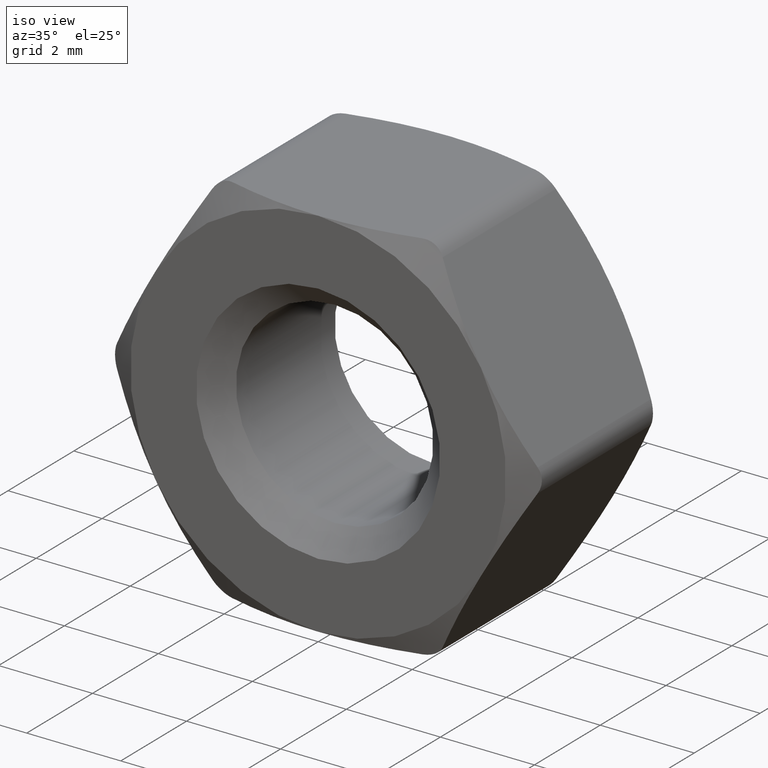
[diagram: clean part render]
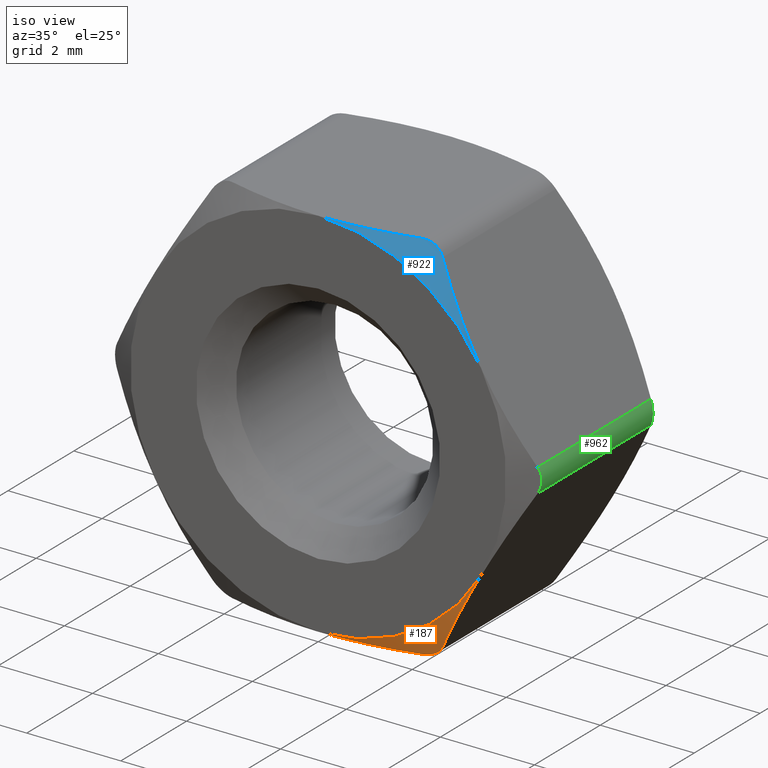
[diagram: same view with three faces highlighted in distinct colors, each labeled with its STEP entity id]
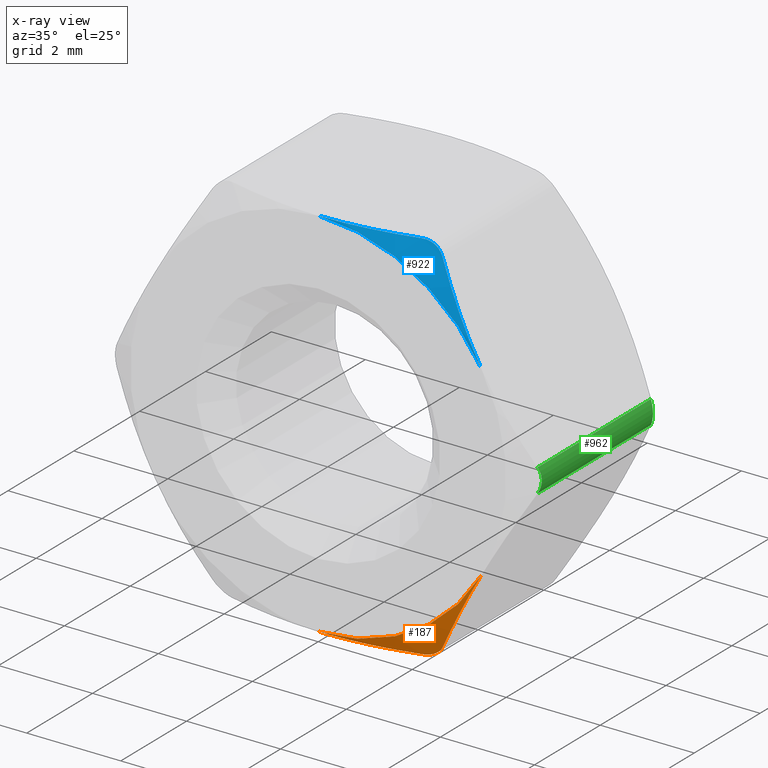
[diagram: x-ray of the same camera — body ghosted, the three highlighted faces saturated]
A machine part, iso view with three faces highlighted in distinct colors.
The next image is the same camera in x-ray (body ghosted, the three faces saturated) — at least one of them is partly hidden behind the body in this view.
Their STEP definitions:

[orange] entity #187 — the highlighted conical surface has half-angle 60 deg.
#3 = CARTESIAN_POINT ( 'NONE',  ( 3.464101615137754800, -1.999999999999999600, -2.000000000000000000 ) ) ;
#98 = B_SPLINE_CURVE_WITH_KNOTS ( 'NONE', 3,
 ( #1752, #1726, #739, #1925, #114, #1757 ),
 .UNSPECIFIED., .F., .F.,
 ( 4, 2, 4 ),
 ( 3.634908046050479300E-018, 0.0002633584510814149500, 0.0005267169021628269600 ),
 .UNSPECIFIED. ) ;
#101 = CARTESIAN_POINT ( 'NONE',  ( 2.020725942163680100, -1.722038627381837100, -4.000000000000001800 ) ) ;
#114 = CARTESIAN_POINT ( 'NONE',  ( 2.410673497673494500, -1.699616087001901500, -3.824591021569729400 ) ) ;
#133 = VERTEX_POINT ( 'NONE', #941 ) ;
#187 = ADVANCED_FACE ( 'NONE', ( #1926 ), #1085, .T. ) ;
#232 = VERTEX_POINT ( 'NONE', #1425 ) ;
#266 = EDGE_CURVE ( 'NONE', #133, #835, #663, .T. ) ;
#326 = ORIENTED_EDGE ( 'NONE', *, *, #266, .F. ) ;
#330 = EDGE_CURVE ( 'NONE', #835, #1880, #441, .T. ) ;
#441 = CIRCLE ( 'NONE', #1036, 3.999999999999997300 ) ;
#519 = CARTESIAN_POINT ( 'NONE',  ( 2.618897511130724900, -1.808031168384834700, -3.463936450905895600 ) ) ;
#528 = CARTESIAN_POINT ( 'NONE',  ( 3.293077073406431000, -2.000000000000004000, -2.296223195619825100 ) ) ;
#663 = B_SPLINE_CURVE_WITH_KNOTS ( 'NONE', 3,
 ( #101, #1262, #1414, #1576, #1588, #994 ),
 .UNSPECIFIED., .F., .F.,
 ( 4, 2, 4 ),
 ( 0.001992220213491122600, 0.003008387476956228400, 0.004024554740421334100 ),
 .UNSPECIFIED. ) ;
#739 = CARTESIAN_POINT ( 'NONE',  ( 2.194171834017785400, -1.687431351220890500, -3.977124165804344400 ) ) ;
#786 = EDGE_LOOP ( 'NONE', ( #326, #1383, #1766, #1743 ) ) ;
#835 = VERTEX_POINT ( 'NONE', #1184 ) ;
#932 = AXIS2_PLACEMENT_3D ( 'NONE', #1393, #1545, #1702 ) ;
#941 = CARTESIAN_POINT ( 'NONE',  ( 2.020725942163680100, -1.722038627381837100, -4.000000000000001800 ) ) ;
#994 = CARTESIAN_POINT ( 'NONE',  ( -3.386450907888039500E-016, -1.999999999999999100, -4.000000000000000000 ) ) ;
#1036 = AXIS2_PLACEMENT_3D ( 'NONE', #1431, #1569, #1721 ) ;
#1085 = CONICAL_SURFACE ( 'NONE', #932, 4.000000000000000000, 1.047197551196603800 ) ;
#1105 = CARTESIAN_POINT ( 'NONE',  ( 2.785389696007726900, -1.877925064878679600, -3.175563527635779400 ) ) ;
#1140 = B_SPLINE_CURVE_WITH_KNOTS ( 'NONE', 3,
 ( #1412, #528, #1691, #1105, #519, #1384 ),
 .UNSPECIFIED., .F., .F.,
 ( 4, 2, 4 ),
 ( 0.002336974151641553000, 0.003352693107047613700, 0.004368412062453674500 ),
 .UNSPECIFIED. ) ;
#1184 = CARTESIAN_POINT ( 'NONE',  ( -3.386450907888039500E-016, -1.999999999999999100, -4.000000000000000000 ) ) ;
#1262 = CARTESIAN_POINT ( 'NONE',  ( 1.692910658353532500, -1.807379698478195400, -4.000000000000001800 ) ) ;
#1383 = ORIENTED_EDGE ( 'NONE', *, *, #1656, .T. ) ;
#1384 = CARTESIAN_POINT ( 'NONE',  ( 2.453738644055903700, -1.722038627381836700, -3.750000000000001300 ) ) ;
#1389 = EDGE_CURVE ( 'NONE', #1880, #232, #1140, .T. ) ;
#1393 = CARTESIAN_POINT ( 'NONE',  ( -3.386450907888040900E-016, -1.999999999999999100, 0.0000000000000000000 ) ) ;
#1412 = CARTESIAN_POINT ( 'NONE',  ( 3.464101615137754800, -1.999999999999999600, -2.000000000000000000 ) ) ;
#1414 = CARTESIAN_POINT ( 'NONE',  ( 1.360912241211178500, -1.877328334183478800, -4.000000000000002700 ) ) ;
#1425 = CARTESIAN_POINT ( 'NONE',  ( 2.453738644055903700, -1.722038627381836700, -3.750000000000001300 ) ) ;
#1431 = CARTESIAN_POINT ( 'NONE',  ( -3.386450907888040900E-016, -2.000000000000000000, 1.173101005959984200E-015 ) ) ;
#1545 = DIRECTION ( 'NONE',  ( 1.693225453944021200E-016, 1.000000000000000000, 0.0000000000000000000 ) ) ;
#1569 = DIRECTION ( 'NONE',  ( -0.0000000000000000000, -1.000000000000000000, -0.0000000000000000000 ) ) ;
#1576 = CARTESIAN_POINT ( 'NONE',  ( 0.6851679467075209000, -1.973999151147253700, -4.000000000000000900 ) ) ;
#1588 = CARTESIAN_POINT ( 'NONE',  ( 0.3403483252378727800, -1.999999999999997800, -4.000000000000001800 ) ) ;
#1656 = EDGE_CURVE ( 'NONE', #133, #232, #98, .T. ) ;
#1691 = CARTESIAN_POINT ( 'NONE',  ( 3.121991427988896300, -1.974036377689816700, -2.592552225928713900 ) ) ;
#1702 = DIRECTION ( 'NONE',  ( 1.000000000000000000, -2.168404344971008900E-016, 0.0000000000000000000 ) ) ;
#1721 = DIRECTION ( 'NONE',  ( 0.0000000000000000000, 0.0000000000000000000, 1.000000000000000000 ) ) ;
#1726 = CARTESIAN_POINT ( 'NONE',  ( 2.106829993848384800, -1.699622918415795200, -4.000000000000002700 ) ) ;
#1743 = ORIENTED_EDGE ( 'NONE', *, *, #330, .F. ) ;
#1752 = CARTESIAN_POINT ( 'NONE',  ( 2.020725942163680100, -1.722038627381837100, -4.000000000000001800 ) ) ;
#1757 = CARTESIAN_POINT ( 'NONE',  ( 2.453738644055903700, -1.722038627381836700, -3.750000000000001300 ) ) ;
#1766 = ORIENTED_EDGE ( 'NONE', *, *, #1389, .F. ) ;
#1880 = VERTEX_POINT ( 'NONE', #3 ) ;
#1925 = CARTESIAN_POINT ( 'NONE',  ( 2.346538960722227800, -1.687354054465799700, -3.889328683676562800 ) ) ;
#1926 = FACE_OUTER_BOUND ( 'NONE', #786, .T. ) ;

[blue] entity #922 — the highlighted conical surface has half-angle 60 deg.
#60 = VERTEX_POINT ( 'NONE', #1675 ) ;
#160 = ORIENTED_EDGE ( 'NONE', *, *, #277, .F. ) ;
#231 = AXIS2_PLACEMENT_3D ( 'NONE', #676, #402, #681 ) ;
#257 = VERTEX_POINT ( 'NONE', #1891 ) ;
#275 = CARTESIAN_POINT ( 'NONE',  ( 2.410686618213948100, -1.699622918414649000, 3.824568296127053300 ) ) ;
#277 = EDGE_CURVE ( 'NONE', #257, #1117, #299, .T. ) ;
#296 = CARTESIAN_POINT ( 'NONE',  ( 2.194987963368462600, -1.687354054466038400, 3.976826692794178900 ) ) ;
#299 = CIRCLE ( 'NONE', #231, 4.000000000000000000 ) ;
#306 = CARTESIAN_POINT ( 'NONE',  ( -3.386450907888040900E-016, -1.999999999999999100, 0.0000000000000000000 ) ) ;
#402 = DIRECTION ( 'NONE',  ( -1.693225453944021200E-016, -1.000000000000000000, -0.0000000000000000000 ) ) ;
#415 = B_SPLINE_CURVE_WITH_KNOTS ( 'NONE', 3,
 ( #447, #275, #1462, #296, #1934, #1309 ),
 .UNSPECIFIED., .F., .F.,
 ( 4, 2, 4 ),
 ( 5.010733338089553500E-015, 0.0002633584510839040600, 0.0005267169021627980200 ),
 .UNSPECIFIED. ) ;
#434 = CARTESIAN_POINT ( 'NONE',  ( 0.3403483252378756700, -1.999999999999998700, 4.000000000000000000 ) ) ;
#447 = CARTESIAN_POINT ( 'NONE',  ( 2.453738644053336000, -1.722038627380491300, 3.750000000004466600 ) ) ;
#493 = CARTESIAN_POINT ( 'NONE',  ( 2.784799980754705000, -1.894410877657313400, 3.176584944416027200 ) ) ;
#567 = CARTESIAN_POINT ( 'NONE',  ( 1.692910658353543400, -1.807379698478194500, 4.000000000000000000 ) ) ;
#587 = CARTESIAN_POINT ( 'NONE',  ( 1.360912241211187800, -1.877328334183477700, 4.000000000000000000 ) ) ;
#605 = DIRECTION ( 'NONE',  ( 1.000000000000000000, -2.168404344971008900E-016, 0.0000000000000000000 ) ) ;
#665 = EDGE_LOOP ( 'NONE', ( #1598, #1932, #1362, #160 ) ) ;
#676 = CARTESIAN_POINT ( 'NONE',  ( -3.386450907888040900E-016, -1.999999999999999100, 0.0000000000000000000 ) ) ;
#681 = DIRECTION ( 'NONE',  ( 1.000000000000000000, -2.168404344971008900E-016, 0.0000000000000000000 ) ) ;
#804 = CONICAL_SURFACE ( 'NONE', #892, 4.000000000000000000, 1.047197551196603800 ) ;
#815 = VERTEX_POINT ( 'NONE', #1189 ) ;
#892 = AXIS2_PLACEMENT_3D ( 'NONE', #306, #1789, #605 ) ;
#922 = ADVANCED_FACE ( 'NONE', ( #1574 ), #804, .T. ) ;
#997 = EDGE_CURVE ( 'NONE', #815, #257, #1714, .T. ) ;
#1068 = CARTESIAN_POINT ( 'NONE',  ( 3.464101615137754400, -1.999999999999999600, 2.000000000000000400 ) ) ;
#1117 = VERTEX_POINT ( 'NONE', #1671 ) ;
#1182 = CARTESIAN_POINT ( 'NONE',  ( 0.6851679467075262300, -1.973999151147255000, 4.000000000000000000 ) ) ;
#1189 = CARTESIAN_POINT ( 'NONE',  ( 2.453738644053336000, -1.722038627380491300, 3.750000000004466600 ) ) ;
#1309 = CARTESIAN_POINT ( 'NONE',  ( 2.020725942163693400, -1.722038627381834900, 4.000000000000000000 ) ) ;
#1317 = CARTESIAN_POINT ( 'NONE',  ( -3.386450907888039500E-016, -1.999999999999999100, 4.000000000000000000 ) ) ;
#1362 = ORIENTED_EDGE ( 'NONE', *, *, #1669, .F. ) ;
#1447 = CARTESIAN_POINT ( 'NONE',  ( 2.020725942163693400, -1.722038627381834900, 4.000000000000000000 ) ) ;
#1462 = CARTESIAN_POINT ( 'NONE',  ( 2.347204644579842500, -1.687431351220643800, 3.888770631432049800 ) ) ;
#1574 = FACE_OUTER_BOUND ( 'NONE', #665, .T. ) ;
#1598 = ORIENTED_EDGE ( 'NONE', *, *, #997, .F. ) ;
#1669 = EDGE_CURVE ( 'NONE', #1117, #60, #1687, .T. ) ;
#1671 = CARTESIAN_POINT ( 'NONE',  ( -3.386450907888039500E-016, -1.999999999999999100, 4.000000000000000000 ) ) ;
#1675 = CARTESIAN_POINT ( 'NONE',  ( 2.020725942163693400, -1.722038627381834900, 4.000000000000000000 ) ) ;
#1684 = CARTESIAN_POINT ( 'NONE',  ( 3.120658469656899700, -1.999999999999999600, 2.594860977484118700 ) ) ;
#1687 = B_SPLINE_CURVE_WITH_KNOTS ( 'NONE', 3,
 ( #1317, #434, #1182, #587, #567, #1447 ),
 .UNSPECIFIED., .F., .F.,
 ( 4, 2, 4 ),
 ( 0.006456566858647354100, 0.007475338649305440800, 0.008494110439963526600 ),
 .UNSPECIFIED. ) ;
#1714 = B_SPLINE_CURVE_WITH_KNOTS ( 'NONE', 3,
 ( #1814, #493, #1684, #1068 ),
 .UNSPECIFIED., .F., .F.,
 ( 4, 4 ),
 ( 0.0002972568722511855300, 0.002336974151641543800 ),
 .UNSPECIFIED. ) ;
#1760 = EDGE_CURVE ( 'NONE', #815, #60, #415, .T. ) ;
#1789 = DIRECTION ( 'NONE',  ( 1.693225453944021200E-016, 1.000000000000000000, 0.0000000000000000000 ) ) ;
#1814 = CARTESIAN_POINT ( 'NONE',  ( 2.453738644053336000, -1.722038627380491300, 3.750000000004466600 ) ) ;
#1891 = CARTESIAN_POINT ( 'NONE',  ( 3.464101615137754400, -1.999999999999999600, 2.000000000000000400 ) ) ;
#1932 = ORIENTED_EDGE ( 'NONE', *, *, #1760, .T. ) ;
#1934 = CARTESIAN_POINT ( 'NONE',  ( 2.106856234927642700, -1.699616087002127100, 4.000000000000002700 ) ) ;

[green] entity #962 — the highlighted cylindrical surface (edge-blend (fillet) strip) has radius 0.5 mm, axis along (0, -1, 0).
#13 = CARTESIAN_POINT ( 'NONE',  ( 4.541376478600925600, 1.687431351220646700, 0.08835353437094589600 ) ) ;
#35 = CARTESIAN_POINT ( 'NONE',  ( 4.474464586222178600, 1.722038627380493300, 0.2499999999955401000 ) ) ;
#121 = CARTESIAN_POINT ( 'NONE',  ( 4.474464586219600200, 2.000000000000000000, 0.2500000000000080500 ) ) ;
#137 = ORIENTED_EDGE ( 'NONE', *, *, #426, .F. ) ;
#156 = VECTOR ( 'NONE', #1007, 1000.000000000000000 ) ;
#169 = CARTESIAN_POINT ( 'NONE',  ( 4.474464586219600200, 1.722038627381836400, -0.2499999999999928900 ) ) ;
#173 = EDGE_CURVE ( 'NONE', #349, #1245, #891, .T. ) ;
#203 = LINE ( 'NONE', #121, #156 ) ;
#207 = CARTESIAN_POINT ( 'NONE',  ( 4.474464586222178600, -1.722038627380493700, -0.2499999999955258300 ) ) ;
#223 = CARTESIAN_POINT ( 'NONE',  ( 4.474464586219600200, -1.722038627381836000, 0.2500000000000072200 ) ) ;
#235 = CARTESIAN_POINT ( 'NONE',  ( 4.474464586222178600, -1.722038627380493700, -0.2499999999955258300 ) ) ;
#320 = CARTESIAN_POINT ( 'NONE',  ( 4.517529732601573800, 1.699616087002129100, -0.1754089784310251800 ) ) ;
#323 = CARTESIAN_POINT ( 'NONE',  ( 4.041451884327380600, 2.000000000000000000, 7.697835424647081500E-015 ) ) ;
#349 = VERTEX_POINT ( 'NONE', #235 ) ;
#365 = EDGE_CURVE ( 'NONE', #687, #349, #989, .T. ) ;
#426 = EDGE_CURVE ( 'NONE', #1245, #1200, #203, .T. ) ;
#442 = ORIENTED_EDGE ( 'NONE', *, *, #365, .F. ) ;
#593 = VECTOR ( 'NONE', #975, 1000.000000000000000 ) ;
#600 = CARTESIAN_POINT ( 'NONE',  ( 4.541526924092040400, 1.687354054466040100, -0.08749800911893032600 ) ) ;
#639 = CARTESIAN_POINT ( 'NONE',  ( 4.517516612061565500, -1.699622918414652100, -0.1754317038729387200 ) ) ;
#687 = VERTEX_POINT ( 'NONE', #169 ) ;
#756 = CYLINDRICAL_SURFACE ( 'NONE', #1897, 0.5000000000000000000 ) ;
#823 = CARTESIAN_POINT ( 'NONE',  ( 4.474464586219600200, 2.000000000000000000, -0.2499999999999927300 ) ) ;
#891 = B_SPLINE_CURVE_WITH_KNOTS ( 'NONE', 3,
 ( #207, #639, #1844, #1680, #1095, #951 ),
 .UNSPECIFIED., .F., .F.,
 ( 4, 2, 4 ),
 ( 5.010532145145018900E-015, 0.0002633584510839031400, 0.0005267169021627957400 ),
 .UNSPECIFIED. ) ;
#904 = CARTESIAN_POINT ( 'NONE',  ( 4.517516612061565500, 1.699622918414651400, 0.1754317038729533700 ) ) ;
#951 = CARTESIAN_POINT ( 'NONE',  ( 4.474464586219600200, -1.722038627381836000, 0.2500000000000072200 ) ) ;
#962 = ADVANCED_FACE ( 'NONE', ( #1242 ), #756, .T. ) ;
#975 = DIRECTION ( 'NONE',  ( 0.0000000000000000000, -1.000000000000000000, 0.0000000000000000000 ) ) ;
#989 = LINE ( 'NONE', #823, #593 ) ;
#996 = ORIENTED_EDGE ( 'NONE', *, *, #1935, .F. ) ;
#1007 = DIRECTION ( 'NONE',  ( -0.0000000000000000000, 1.000000000000000000, -0.0000000000000000000 ) ) ;
#1095 = CARTESIAN_POINT ( 'NONE',  ( 4.517529732601574600, -1.699616087002128600, 0.1754089784310398600 ) ) ;
#1200 = VERTEX_POINT ( 'NONE', #35 ) ;
#1224 = DIRECTION ( 'NONE',  ( 0.0000000000000000000, -1.000000000000000000, 0.0000000000000000000 ) ) ;
#1242 = FACE_OUTER_BOUND ( 'NONE', #1337, .T. ) ;
#1245 = VERTEX_POINT ( 'NONE', #223 ) ;
#1331 = B_SPLINE_CURVE_WITH_KNOTS ( 'NONE', 3,
 ( #1500, #904, #13, #600, #320, #1345 ),
 .UNSPECIFIED., .F., .F.,
 ( 4, 2, 4 ),
 ( 5.010879643934234700E-015, 0.0002633584510839034100, 0.0005267169021627959600 ),
 .UNSPECIFIED. ) ;
#1337 = EDGE_LOOP ( 'NONE', ( #996, #137, #1906, #442 ) ) ;
#1345 = CARTESIAN_POINT ( 'NONE',  ( 4.474464586219600200, 1.722038627381836400, -0.2499999999999928900 ) ) ;
#1359 = DIRECTION ( 'NONE',  ( 0.0000000000000000000, 0.0000000000000000000, -1.000000000000000000 ) ) ;
#1500 = CARTESIAN_POINT ( 'NONE',  ( 4.474464586222178600, 1.722038627380493300, 0.2499999999955401000 ) ) ;
#1680 = CARTESIAN_POINT ( 'NONE',  ( 4.541526924092040400, -1.687354054466040100, 0.08749800911894471700 ) ) ;
#1844 = CARTESIAN_POINT ( 'NONE',  ( 4.541376478600924700, -1.687431351220646700, -0.08835353437093146400 ) ) ;
#1897 = AXIS2_PLACEMENT_3D ( 'NONE', #323, #1224, #1359 ) ;
#1906 = ORIENTED_EDGE ( 'NONE', *, *, #173, .F. ) ;
#1935 = EDGE_CURVE ( 'NONE', #1200, #687, #1331, .T. ) ;